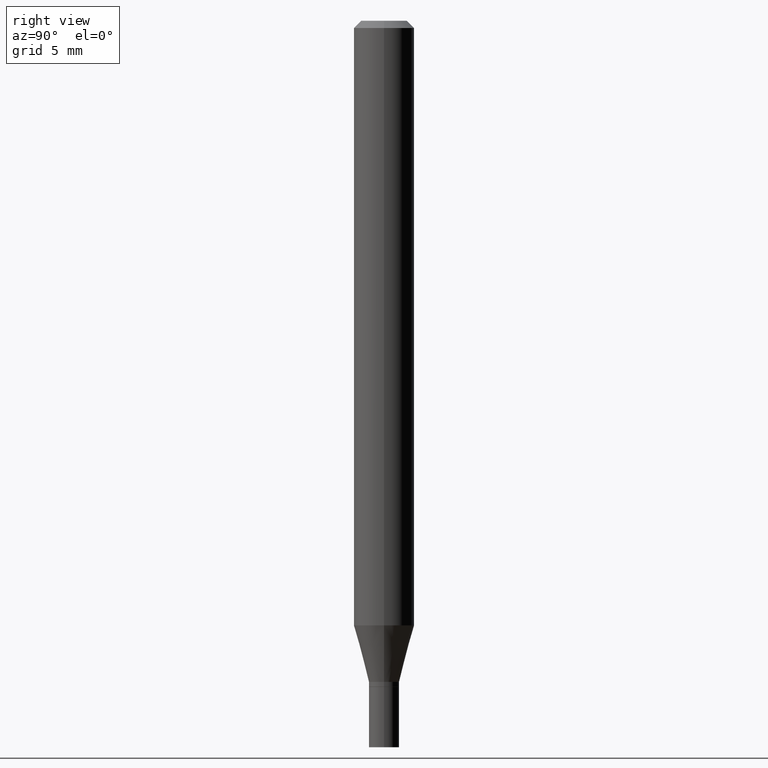
[diagram: clean part render]
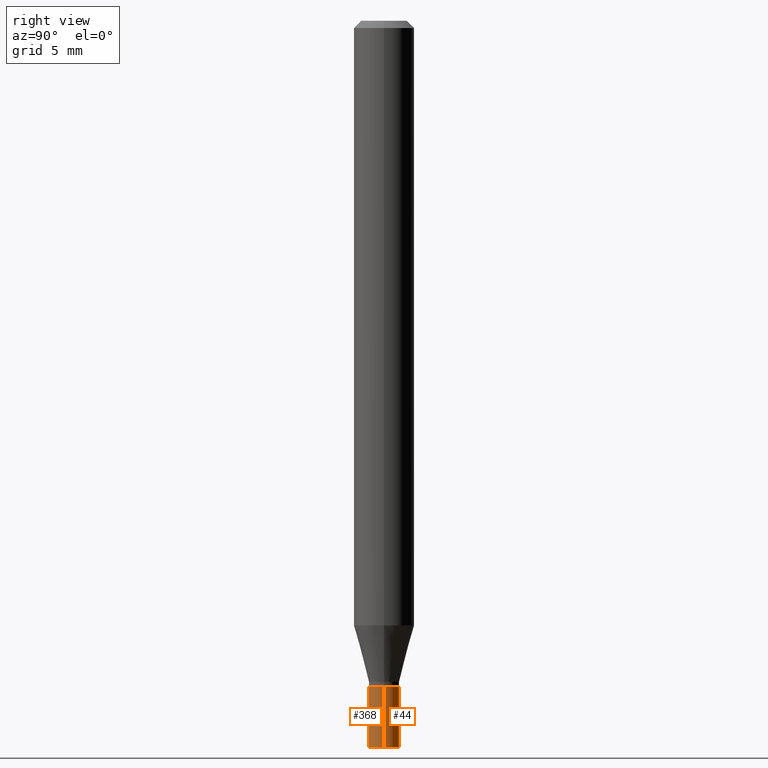
[diagram: same view with one multi-face feature highlighted, each face labeled with its STEP entity id]
A machine part, right view. The highlighted faces form ONE feature: a constant-radius fillet chain: 2 tangent blend faces with common blend radius 0.7938 mm. The faces share edges in the B-rep.
Their STEP definitions:
[1] entity #44 (Cylinder):
#2 = VECTOR ( 'NONE', #418, 39.37007874015748143 ) ;
#3 = DIRECTION ( 'NONE',  ( 1.000000000000000000, -6.982962677686261189E-15, 0.000000000000000000 ) ) ;
#5 = CARTESIAN_POINT ( 'NONE',  ( -0.03125000000000000694, -4.796959819661991034E-15, -1.375000000000000000 ) ) ;
#18 = DIRECTION ( 'NONE',  ( 1.000000000000000000, -6.982962677686267499E-15, 4.876176775795935793E-29 ) ) ;
#27 = EDGE_CURVE ( 'NONE', #444, #396, #99, .T. ) ;
#38 = DIRECTION ( 'NONE',  ( -2.445468806185136597E-29, 3.491481338843145583E-15, 1.000000000000000000 ) ) ;
#44 = ADVANCED_FACE ( 'NONE', ( #119 ), #409, .T. ) ;
#62 = VECTOR ( 'NONE', #313, 39.37007874015748143 ) ;
#76 = ORIENTED_EDGE ( 'NONE', *, *, #234, .T. ) ;
#84 = DIRECTION ( 'NONE',  ( -2.445468806185136597E-29, 3.491481338843145583E-15, 1.000000000000000000 ) ) ;
#99 = CIRCLE ( 'NONE', #302, 0.03125000000000000694 ) ;
#111 = EDGE_LOOP ( 'NONE', ( #435, #76, #331, #214 ) ) ;
#119 = FACE_OUTER_BOUND ( 'NONE', #111, .T. ) ;
#128 = AXIS2_PLACEMENT_3D ( 'NONE', #408, #38, #3 ) ;
#130 = LINE ( 'NONE', #386, #2 ) ;
#148 = VERTEX_POINT ( 'NONE', #454 ) ;
#203 = LINE ( 'NONE', #348, #62 ) ;
#207 = CARTESIAN_POINT ( 'NONE',  ( 0.03125000000000000694, -5.019004424587020764E-15, -1.375000000000000000 ) ) ;
#214 = ORIENTED_EDGE ( 'NONE', *, *, #309, .F. ) ;
#234 = EDGE_CURVE ( 'NONE', #148, #396, #203, .T. ) ;
#257 = DIRECTION ( 'NONE',  ( -2.445468806185136597E-29, 3.491481338843145583E-15, 1.000000000000000000 ) ) ;
#261 = CARTESIAN_POINT ( 'NONE',  ( 0.000000000000000000, 0.000000000000000000, 0.000000000000000000 ) ) ;
#267 = EDGE_CURVE ( 'NONE', #359, #148, #330, .T. ) ;
#294 = CARTESIAN_POINT ( 'NONE',  ( 0.03125000000000000694, -5.455439591942414011E-15, -1.500000000000000222 ) ) ;
#302 = AXIS2_PLACEMENT_3D ( 'NONE', #415, #257, #380 ) ;
#309 = EDGE_CURVE ( 'NONE', #359, #444, #130, .T. ) ;
#313 = DIRECTION ( 'NONE',  ( -2.445468806185136877E-29, 3.491481338843145188E-15, 1.000000000000000000 ) ) ;
#330 = CIRCLE ( 'NONE', #128, 0.03125000000000000694 ) ;
#331 = ORIENTED_EDGE ( 'NONE', *, *, #27, .F. ) ;
#348 = CARTESIAN_POINT ( 'NONE',  ( -0.03125000000000000694, 2.220446049250313574E-16, -1.537167215704658582E-30 ) ) ;
#359 = VERTEX_POINT ( 'NONE', #294 ) ;
#370 = AXIS2_PLACEMENT_3D ( 'NONE', #261, #84, #18 ) ;
#380 = DIRECTION ( 'NONE',  ( 1.000000000000000000, -6.982962677686261189E-15, 0.000000000000000000 ) ) ;
#386 = CARTESIAN_POINT ( 'NONE',  ( 0.03125000000000000694, -2.182175836776959087E-16, 1.523805242436230286E-30 ) ) ;
#396 = VERTEX_POINT ( 'NONE', #5 ) ;
#408 = CARTESIAN_POINT ( 'NONE',  ( 3.668203209277704895E-29, -5.237222008264718177E-15, -1.500000000000000222 ) ) ;
#409 = CYLINDRICAL_SURFACE ( 'NONE', #370, 0.03125000000000000694 ) ;
#415 = CARTESIAN_POINT ( 'NONE',  ( 3.362519608504562260E-29, -4.800786840909324930E-15, -1.375000000000000000 ) ) ;
#418 = DIRECTION ( 'NONE',  ( -2.445468806185136877E-29, 3.491481338843145188E-15, 1.000000000000000000 ) ) ;
#435 = ORIENTED_EDGE ( 'NONE', *, *, #267, .T. ) ;
#444 = VERTEX_POINT ( 'NONE', #207 ) ;
#454 = CARTESIAN_POINT ( 'NONE',  ( -0.03125000000000000694, -4.796959819661991034E-15, -1.500000000000000222 ) ) ;
[2] entity #368 (Cylinder):
#2 = VECTOR ( 'NONE', #418, 39.37007874015748143 ) ;
#5 = CARTESIAN_POINT ( 'NONE',  ( -0.03125000000000000694, -4.796959819661991034E-15, -1.375000000000000000 ) ) ;
#25 = AXIS2_PLACEMENT_3D ( 'NONE', #304, #372, #55 ) ;
#46 = EDGE_CURVE ( 'NONE', #148, #359, #420, .T. ) ;
#55 = DIRECTION ( 'NONE',  ( 1.000000000000000000, -6.982962677686261189E-15, 0.000000000000000000 ) ) ;
#62 = VECTOR ( 'NONE', #313, 39.37007874015748143 ) ;
#109 = CARTESIAN_POINT ( 'NONE',  ( 3.362519608504562260E-29, -4.800786840909324930E-15, -1.375000000000000000 ) ) ;
#130 = LINE ( 'NONE', #386, #2 ) ;
#141 = CYLINDRICAL_SURFACE ( 'NONE', #265, 0.03125000000000000694 ) ;
#148 = VERTEX_POINT ( 'NONE', #454 ) ;
#160 = EDGE_LOOP ( 'NONE', ( #328, #452, #210, #321 ) ) ;
#172 = DIRECTION ( 'NONE',  ( 1.000000000000000000, -6.982962677686261189E-15, 0.000000000000000000 ) ) ;
#203 = LINE ( 'NONE', #348, #62 ) ;
#207 = CARTESIAN_POINT ( 'NONE',  ( 0.03125000000000000694, -5.019004424587020764E-15, -1.375000000000000000 ) ) ;
#210 = ORIENTED_EDGE ( 'NONE', *, *, #309, .T. ) ;
#218 = DIRECTION ( 'NONE',  ( -2.445468806185136597E-29, 3.491481338843145583E-15, 1.000000000000000000 ) ) ;
#234 = EDGE_CURVE ( 'NONE', #148, #396, #203, .T. ) ;
#265 = AXIS2_PLACEMENT_3D ( 'NONE', #397, #285, #436 ) ;
#285 = DIRECTION ( 'NONE',  ( -2.445468806185136597E-29, 3.491481338843145583E-15, 1.000000000000000000 ) ) ;
#294 = CARTESIAN_POINT ( 'NONE',  ( 0.03125000000000000694, -5.455439591942414011E-15, -1.500000000000000222 ) ) ;
#304 = CARTESIAN_POINT ( 'NONE',  ( 3.668203209277704895E-29, -5.237222008264718177E-15, -1.500000000000000222 ) ) ;
#308 = AXIS2_PLACEMENT_3D ( 'NONE', #109, #218, #172 ) ;
#309 = EDGE_CURVE ( 'NONE', #359, #444, #130, .T. ) ;
#313 = DIRECTION ( 'NONE',  ( -2.445468806185136877E-29, 3.491481338843145188E-15, 1.000000000000000000 ) ) ;
#321 = ORIENTED_EDGE ( 'NONE', *, *, #381, .F. ) ;
#328 = ORIENTED_EDGE ( 'NONE', *, *, #234, .F. ) ;
#348 = CARTESIAN_POINT ( 'NONE',  ( -0.03125000000000000694, 2.220446049250313574E-16, -1.537167215704658582E-30 ) ) ;
#359 = VERTEX_POINT ( 'NONE', #294 ) ;
#368 = ADVANCED_FACE ( 'NONE', ( #392 ), #141, .T. ) ;
#372 = DIRECTION ( 'NONE',  ( -2.445468806185136597E-29, 3.491481338843145583E-15, 1.000000000000000000 ) ) ;
#381 = EDGE_CURVE ( 'NONE', #396, #444, #401, .T. ) ;
#386 = CARTESIAN_POINT ( 'NONE',  ( 0.03125000000000000694, -2.182175836776959087E-16, 1.523805242436230286E-30 ) ) ;
#392 = FACE_OUTER_BOUND ( 'NONE', #160, .T. ) ;
#396 = VERTEX_POINT ( 'NONE', #5 ) ;
#397 = CARTESIAN_POINT ( 'NONE',  ( 0.000000000000000000, 0.000000000000000000, 0.000000000000000000 ) ) ;
#401 = CIRCLE ( 'NONE', #308, 0.03125000000000000694 ) ;
#418 = DIRECTION ( 'NONE',  ( -2.445468806185136877E-29, 3.491481338843145188E-15, 1.000000000000000000 ) ) ;
#420 = CIRCLE ( 'NONE', #25, 0.03125000000000000694 ) ;
#436 = DIRECTION ( 'NONE',  ( 1.000000000000000000, -6.982962677686267499E-15, 4.876176775795935793E-29 ) ) ;
#444 = VERTEX_POINT ( 'NONE', #207 ) ;
#452 = ORIENTED_EDGE ( 'NONE', *, *, #46, .T. ) ;
#454 = CARTESIAN_POINT ( 'NONE',  ( -0.03125000000000000694, -4.796959819661991034E-15, -1.500000000000000222 ) ) ;